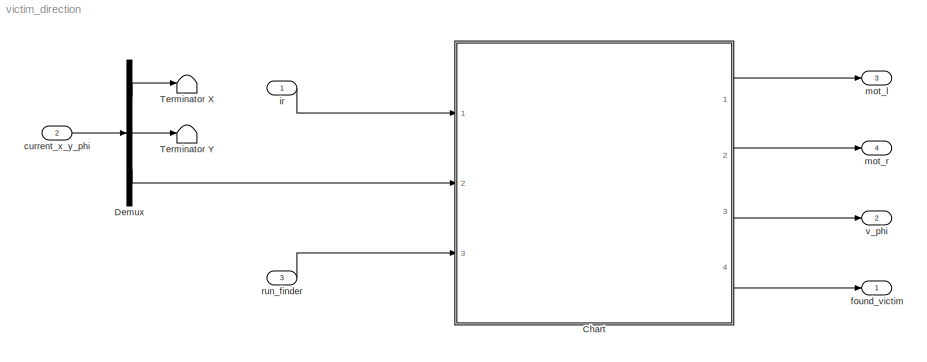
MODEL victim_direction
KIND model
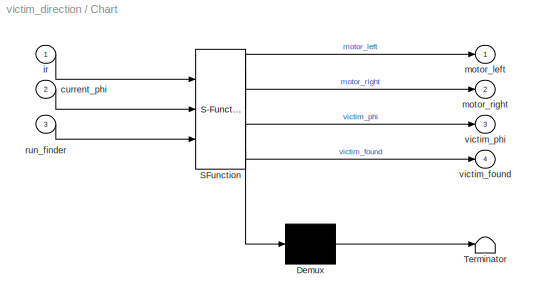
BLOCK [SubSystem] Chart
  ErrorFcn = Stateflow.Translate.translate
  PermitHierarchicalResolution = ExplicitOnly
  Ports = [3, 4]
  RequestExecContextInheritance = off
  SFBlockType = Chart
  SID = 77
  TreatAsAtomicUnit = on
  Variant = off
BLOCK [Demux] Chart/ Demux 
  Outputs = 1
  Ports = [1, 1]
  SID = 77::78
BLOCK [S-Function] Chart/ SFunction 
  EnableBusSupport = on
  FunctionName = sf_sfun
  PortCounts = [3 5]
  Ports = [3, 5]
  SFunctionDeploymentMode = off
  SID = 77::77
  Tag = Stateflow S-Function victim_direction 3
BLOCK [Terminator] Chart/ Terminator 
  SID = 77::79
BLOCK [Inport] Chart/current_phi
  IconDisplay = Port number
  Port = 2
  SID = 77::82
BLOCK [Inport] Chart/ir
  IconDisplay = Port number
  SID = 77::81
BLOCK [Outport] Chart/motor_left
  IconDisplay = Port number
  SID = 77::86
BLOCK [Outport] Chart/motor_right
  IconDisplay = Port number
  Port = 2
  SID = 77::83
BLOCK [Inport] Chart/run_finder
  IconDisplay = Port number
  Port = 3
  SID = 77::88
BLOCK [Outport] Chart/victim_found
  IconDisplay = Port number
  Port = 4
  SID = 77::85
BLOCK [Outport] Chart/victim_phi
  IconDisplay = Port number
  Port = 3
  SID = 77::84
BLOCK [Demux] Demux
  DisplayOption = bar
  Outputs = 3
  Ports = [1, 3]
  SID = 79
BLOCK [Terminator] Terminator X
  SID = 80
BLOCK [Terminator] Terminator Y
  SID = 81
BLOCK [Inport] current_x_y_phi
  IconDisplay = Port number
  Port = 2
  PortDimensions = [3]
  SID = 56
BLOCK [Outport] found_victim
  IconDisplay = Port number
  SID = 59
BLOCK [Inport] ir
  IconDisplay = Port number
  OutDataTypeStr = boolean
  PortDimensions = [6]
  SID = 55
BLOCK [Outport] mot_l
  IconDisplay = Port number
  Port = 3
  SID = 57
BLOCK [Outport] mot_r
  IconDisplay = Port number
  Port = 4
  SID = 58
BLOCK [Inport] run_finder
  IconDisplay = Port number
  Port = 3
  SID = 65
BLOCK [Outport] v_phi
  IconDisplay = Port number
  Port = 2
  SID = 60
LINE Chart/ Demux :1 -> Chart/ Terminator :1
LINE Chart/ SFunction :1 -> Chart/ Demux :1
LINE Chart/ SFunction :2 -> Chart/motor_left:1
LINE Chart/ SFunction :3 -> Chart/motor_right:1
LINE Chart/ SFunction :4 -> Chart/victim_phi:1
LINE Chart/ SFunction :5 -> Chart/victim_found:1
LINE Chart/current_phi:1 -> Chart/ SFunction :2
LINE Chart/ir:1 -> Chart/ SFunction :1
LINE Chart/run_finder:1 -> Chart/ SFunction :3
LINE Chart:1 -> mot_l:1
LINE Chart:2 -> mot_r:1
LINE Chart:3 -> v_phi:1
LINE Chart:4 -> found_victim:1
LINE Demux:1 -> Terminator X:1
LINE Demux:2 -> Terminator Y:1
LINE Demux:3 -> Chart:2
LINE current_x_y_phi:1 -> Demux:1
LINE ir:1 -> Chart:1
LINE run_finder:1 -> Chart:3
CHART Chart states=6 transitions=7
  STATE_LABEL 'On'
  STATE_LABEL 'Start\\nentry:\\n% Precondition: At least one sensor\\n% deos not detect an IR signal.\\nvictim_found = 0;\\nsensor = -1;\\nfor i = 1:6\\n    if ir(i) == 0\\n        sensor = i;\\n    end\\nend\\nassert(ir(sensor) == 0);\\nmotor_left = -1;\\nmotor_right = 1;\\ninitial_phi = current_phi;'
  STATE_LABEL 'FoundStart\\nentry:\\nbound1 = current_phi;'
  STATE_LABEL 'FoundEnd\\nentry:\\nvictim_phi = determine_victim_phi(bound1, current_phi, sensor);\\n'
  STATE_LABEL 'Done\\nentry:\\nvictim_found = 1;\\nmotor_right = 0;\\nmotor_left = 0;'
  STATE_LABEL 'Off\\nentry:\\nmotor_left = 0;\\nmotor_right = 0;'
